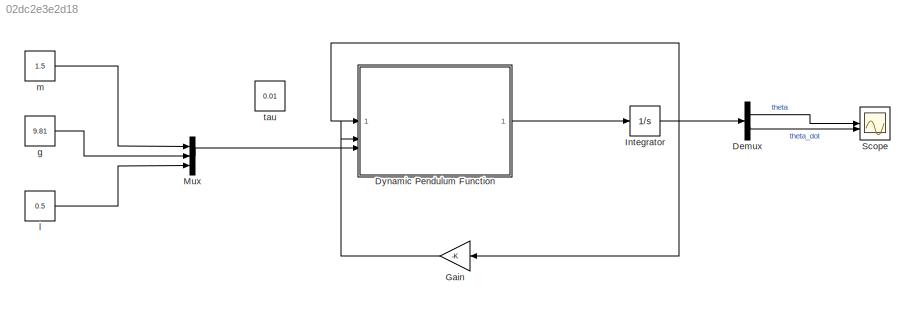
MODEL slx_02dc2e3e2d18
KIND model
CONFIG AbsTol = auto
CONFIG EnableMultiTasking = off
CONFIG FixedStep = auto
CONFIG MaxStep = auto
CONFIG MinStep = auto
CONFIG RelTol = 1e-3
CONFIG SampleTimeConstraint = Unconstrained
CONFIG SolverName = VariableStepAuto
CONFIG StartTime = 0.0
CONFIG StopTime = 10.0
BLOCK [Demux] Demux
  Outputs = 2
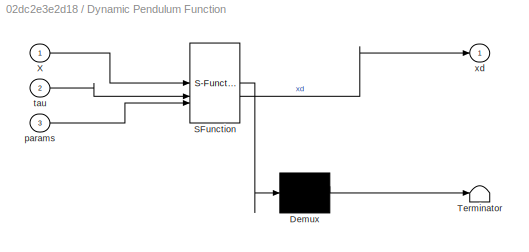
BLOCK [SubSystem] Dynamic Pendulum Function
  ErrorFcn = Stateflow.Translate.translate
  PermitHierarchicalResolution = ExplicitOnly
  SFBlockType = MATLAB Function
  TreatAsAtomicUnit = on
BLOCK [Demux] Dynamic Pendulum Function/ Demux 
  Outputs = 1
BLOCK [S-Function] Dynamic Pendulum Function/ SFunction 
  EnableBusSupport = on
  FunctionName = sf_sfun
  PortCounts = [3 2]
  SFcnIsStateOwnerBlock = off
  SFunctionDeploymentMode = off
  Tag = Stateflow S-Function 2
BLOCK [Terminator] Dynamic Pendulum Function/ Terminator 
BLOCK [Inport] Dynamic Pendulum Function/X
BLOCK [Inport] Dynamic Pendulum Function/params
  Port = 3
BLOCK [Inport] Dynamic Pendulum Function/tau
  Port = 2
BLOCK [Outport] Dynamic Pendulum Function/xd
BLOCK [Gain] Gain
  Gain = -K
  Multiplication = Matrix(K*u) (u vector)
  NameLocation = top
BLOCK [Integrator] Integrator
  InitialCondition = [1;0]
BLOCK [Mux] Mux
  DisplayOption = bar
  Inputs = 3
BLOCK [Scope] Scope
  Floating = off
  NumInputPorts = 2
  ScopeSpecificationString = Simulink.scopes.TimeScopeBlockCfg('CurrentConfiguration', extmgr.ConfigurationSet(extmgr.Configuration('Core','General UI',true),extmgr.Configuration('Core','Source UI',true),extmgr.Configuration('Sources','WiredSimulink',true),extmgr.Configuration('Visuals','Time Domain',true,'SerializedDisplays',{struct('MinYLimReal','-0.88838','MaxYLimReal','1.20982','YLabelReal','','MinYLimMag','0.00000','MaxY...<+2034ch>
BLOCK [Constant] g
  Value = 9.81
BLOCK [Constant] l
  Value = 0.5
BLOCK [Constant] m
  Value = 1.5
BLOCK [Constant] tau
  Commented = on
  Value = 0.01
LINE Demux:1 -> Scope:1
LINE Demux:2 -> Scope:2
LINE Dynamic Pendulum Function:1 -> Integrator:1
LINE Gain:1 -> Dynamic Pendulum Function:2
NET Integrator:1 -> Demux:1, Dynamic Pendulum Function:1, Gain:1
LINE Mux:1 -> Dynamic Pendulum Function:3
LINE g:1 -> Mux:2
LINE l:1 -> Mux:3
LINE m:1 -> Mux:1
note: NET lines group one-source signal fan-out (src -> all destinations, sorted); 1:1 wires keep LINE
CHART Dynamic Pendulum Function states=1 transitions=1
  STATE_LABEL 'eML_blk_kernel()'
  STATE_LABEL 'SCRIPT:\nfunction xd = Dynamic(X, tau, params)\nm = params(1);\ng = params(2);\nl = params(3);\n\nxd1 = X(2);\nxd2 = ((1/m*l^2)*tau) - ((g/l)*sin(X(1)));\n\nxd = [xd1; xd2];\n\n\n'
CHART  states=0 transitions=0
